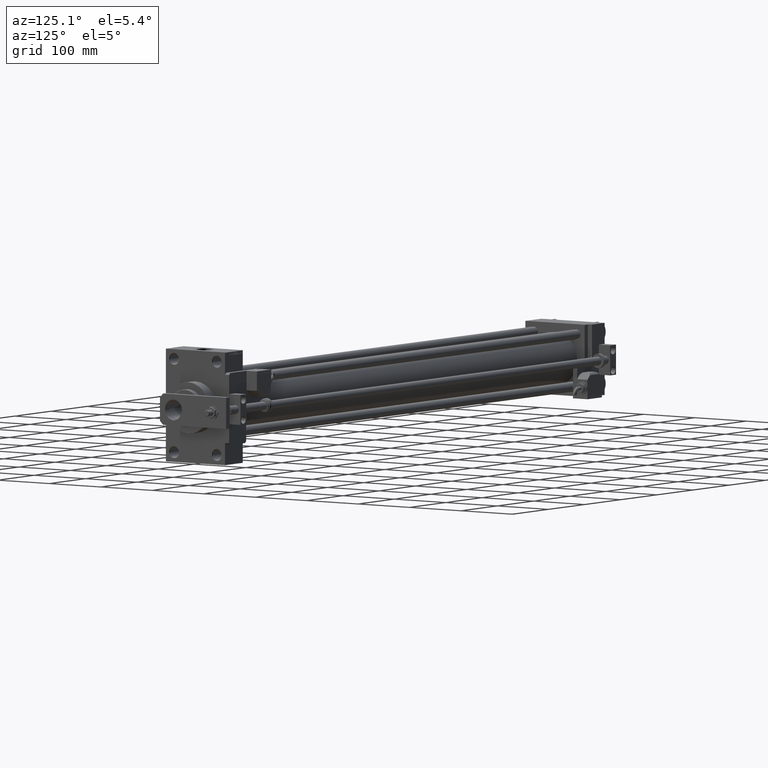
[diagram: clean part render]
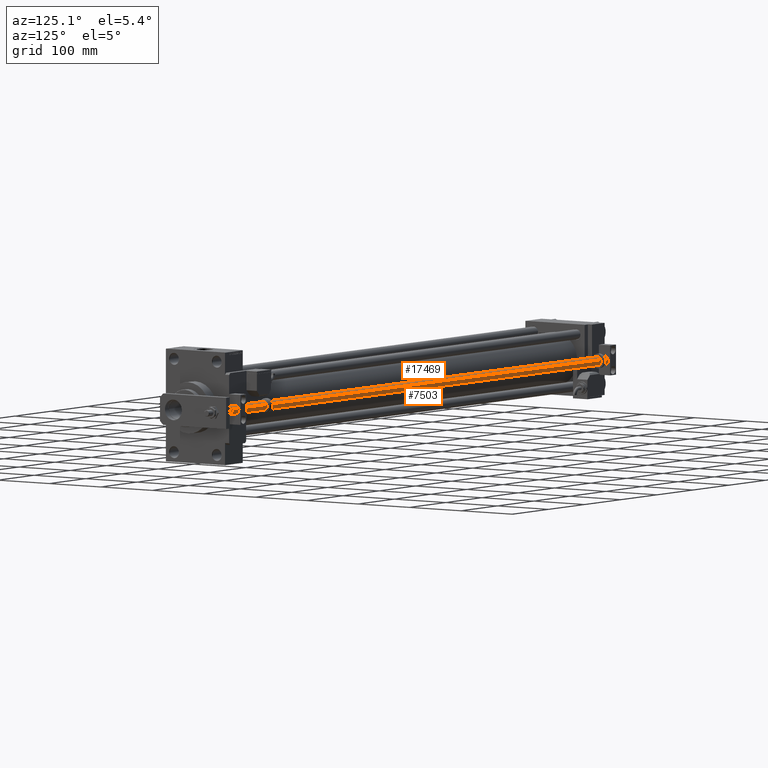
[diagram: same view with one multi-face feature highlighted, each face labeled with its STEP entity id]
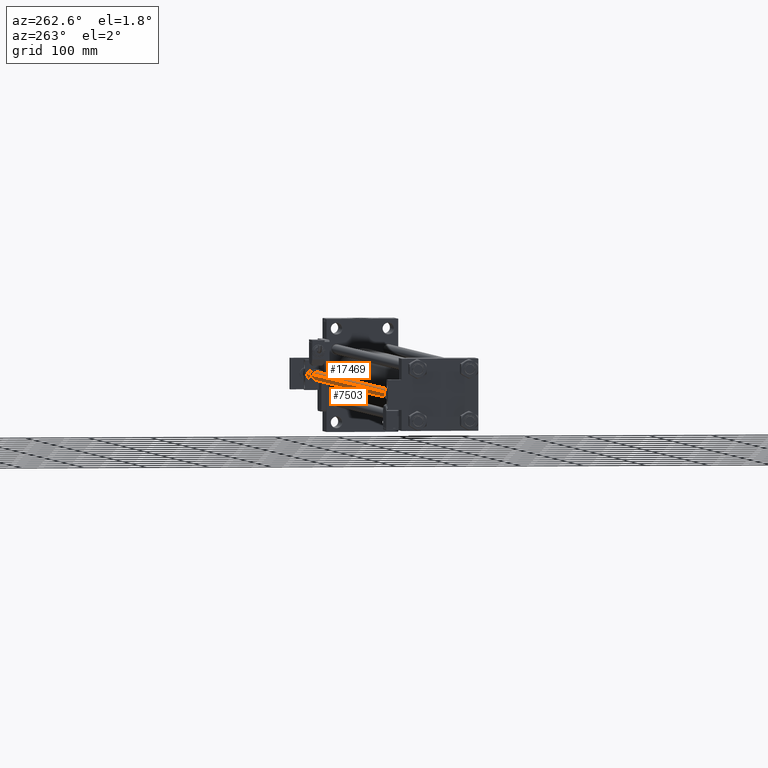
[diagram: same view with one multi-face feature highlighted, each face labeled with its STEP entity id]
A machine part, auxiliary view. The highlighted faces form ONE feature: a constant-radius fillet chain: 2 tangent blend faces with common blend radius 7 mm. The faces share edges in the B-rep.
A second angle (auxiliary view) of the same feature is appended — it is thin or edge-on in the first view.
Their STEP definitions:
[1] entity #7503 (Cylinder):
#692 = DIRECTION ( 'NONE',  ( -0.000000000000000000, -0.000000000000000000, -1.000000000000000000 ) ) ;
#845 = CARTESIAN_POINT ( 'NONE',  ( 7.000000000000000000, 8.572527594031473190E-16, 1058.000000000000000 ) ) ;
#3418 = AXIS2_PLACEMENT_3D ( 'NONE', #5179, #34915, #43068 ) ;
#4834 = DIRECTION ( 'NONE',  ( -0.000000000000000000, -0.000000000000000000, 1.000000000000000000 ) ) ;
#5179 = CARTESIAN_POINT ( 'NONE',  ( 0.000000000000000000, 0.000000000000000000, 1058.000000000000000 ) ) ;
#5529 = LINE ( 'NONE', #31053, #46439 ) ;
#6480 = DIRECTION ( 'NONE',  ( 0.000000000000000000, 0.000000000000000000, 1.000000000000000000 ) ) ;
#7177 = EDGE_CURVE ( 'NONE', #29651, #44306, #5529, .T. ) ;
#7503 = ADVANCED_FACE ( 'NONE', ( #25951 ), #30984, .T. ) ;
#8386 = EDGE_CURVE ( 'NONE', #23896, #48683, #35487, .T. ) ;
#10831 = AXIS2_PLACEMENT_3D ( 'NONE', #38249, #4834, #51439 ) ;
#11241 = CARTESIAN_POINT ( 'NONE',  ( 0.000000000000000000, 0.000000000000000000, 1058.000000000000000 ) ) ;
#11989 = ORIENTED_EDGE ( 'NONE', *, *, #7177, .F. ) ;
#12232 = EDGE_CURVE ( 'NONE', #23896, #29651, #27673, .T. ) ;
#13488 = CARTESIAN_POINT ( 'NONE',  ( 7.000000000000000000, 8.572527594031473190E-16, 0.2999999999999669598 ) ) ;
#19597 = AXIS2_PLACEMENT_3D ( 'NONE', #11241, #6480, #52806 ) ;
#21414 = CARTESIAN_POINT ( 'NONE',  ( -7.000000000000000000, 0.000000000000000000, 1058.000000000000000 ) ) ;
#23896 = VERTEX_POINT ( 'NONE', #845 ) ;
#25951 = FACE_OUTER_BOUND ( 'NONE', #36016, .T. ) ;
#26478 = EDGE_CURVE ( 'NONE', #48683, #44306, #28794, .T. ) ;
#27673 = CIRCLE ( 'NONE', #19597, 7.000000000000000000 ) ;
#28794 = CIRCLE ( 'NONE', #10831, 7.000000000000000000 ) ;
#29651 = VERTEX_POINT ( 'NONE', #21414 ) ;
#30176 = CARTESIAN_POINT ( 'NONE',  ( 7.000000000000000000, 8.572527594031473190E-16, 1058.000000000000000 ) ) ;
#30984 = CYLINDRICAL_SURFACE ( 'NONE', #3418, 7.000000000000000000 ) ;
#31053 = CARTESIAN_POINT ( 'NONE',  ( -7.000000000000000000, 0.000000000000000000, 1058.000000000000000 ) ) ;
#31383 = ORIENTED_EDGE ( 'NONE', *, *, #12232, .F. ) ;
#34915 = DIRECTION ( 'NONE',  ( -0.000000000000000000, -0.000000000000000000, -1.000000000000000000 ) ) ;
#35487 = LINE ( 'NONE', #30176, #51846 ) ;
#36016 = EDGE_LOOP ( 'NONE', ( #31383, #48695, #37261, #11989 ) ) ;
#37261 = ORIENTED_EDGE ( 'NONE', *, *, #26478, .T. ) ;
#38249 = CARTESIAN_POINT ( 'NONE',  ( 0.000000000000000000, 0.000000000000000000, 0.2999999999999669598 ) ) ;
#42573 = CARTESIAN_POINT ( 'NONE',  ( -7.000000000000000000, 0.000000000000000000, 0.2999999999999669598 ) ) ;
#43068 = DIRECTION ( 'NONE',  ( -1.000000000000000000, 0.000000000000000000, 0.000000000000000000 ) ) ;
#44306 = VERTEX_POINT ( 'NONE', #42573 ) ;
#46439 = VECTOR ( 'NONE', #48187, 1000.000000000000000 ) ;
#48187 = DIRECTION ( 'NONE',  ( -0.000000000000000000, -0.000000000000000000, -1.000000000000000000 ) ) ;
#48683 = VERTEX_POINT ( 'NONE', #13488 ) ;
#48695 = ORIENTED_EDGE ( 'NONE', *, *, #8386, .T. ) ;
#51439 = DIRECTION ( 'NONE',  ( 1.000000000000000000, 0.000000000000000000, 0.000000000000000000 ) ) ;
#51846 = VECTOR ( 'NONE', #692, 1000.000000000000000 ) ;
#52806 = DIRECTION ( 'NONE',  ( 1.000000000000000000, 0.000000000000000000, 0.000000000000000000 ) ) ;
[2] entity #17469 (Cylinder):
#692 = DIRECTION ( 'NONE',  ( -0.000000000000000000, -0.000000000000000000, -1.000000000000000000 ) ) ;
#845 = CARTESIAN_POINT ( 'NONE',  ( 7.000000000000000000, 8.572527594031473190E-16, 1058.000000000000000 ) ) ;
#1873 = AXIS2_PLACEMENT_3D ( 'NONE', #52772, #18246, #23289 ) ;
#5267 = ORIENTED_EDGE ( 'NONE', *, *, #7177, .T. ) ;
#5529 = LINE ( 'NONE', #31053, #46439 ) ;
#6178 = FACE_OUTER_BOUND ( 'NONE', #6243, .T. ) ;
#6243 = EDGE_LOOP ( 'NONE', ( #49064, #54006, #5267, #8683 ) ) ;
#7177 = EDGE_CURVE ( 'NONE', #29651, #44306, #5529, .T. ) ;
#8386 = EDGE_CURVE ( 'NONE', #23896, #48683, #35487, .T. ) ;
#8683 = ORIENTED_EDGE ( 'NONE', *, *, #24578, .T. ) ;
#11307 = CARTESIAN_POINT ( 'NONE',  ( 0.000000000000000000, 0.000000000000000000, 0.2999999999999669598 ) ) ;
#11595 = CARTESIAN_POINT ( 'NONE',  ( 0.000000000000000000, 0.000000000000000000, 1058.000000000000000 ) ) ;
#13488 = CARTESIAN_POINT ( 'NONE',  ( 7.000000000000000000, 8.572527594031473190E-16, 0.2999999999999669598 ) ) ;
#15254 = DIRECTION ( 'NONE',  ( -0.000000000000000000, -0.000000000000000000, 1.000000000000000000 ) ) ;
#17469 = ADVANCED_FACE ( 'NONE', ( #6178 ), #27504, .T. ) ;
#18246 = DIRECTION ( 'NONE',  ( -0.000000000000000000, -0.000000000000000000, -1.000000000000000000 ) ) ;
#21414 = CARTESIAN_POINT ( 'NONE',  ( -7.000000000000000000, 0.000000000000000000, 1058.000000000000000 ) ) ;
#23289 = DIRECTION ( 'NONE',  ( -1.000000000000000000, 0.000000000000000000, 0.000000000000000000 ) ) ;
#23896 = VERTEX_POINT ( 'NONE', #845 ) ;
#24578 = EDGE_CURVE ( 'NONE', #44306, #48683, #51237, .T. ) ;
#27504 = CYLINDRICAL_SURFACE ( 'NONE', #1873, 7.000000000000000000 ) ;
#27659 = EDGE_CURVE ( 'NONE', #29651, #23896, #47615, .T. ) ;
#28713 = DIRECTION ( 'NONE',  ( 1.000000000000000000, 0.000000000000000000, 0.000000000000000000 ) ) ;
#29537 = DIRECTION ( 'NONE',  ( 0.000000000000000000, 0.000000000000000000, 1.000000000000000000 ) ) ;
#29651 = VERTEX_POINT ( 'NONE', #21414 ) ;
#30176 = CARTESIAN_POINT ( 'NONE',  ( 7.000000000000000000, 8.572527594031473190E-16, 1058.000000000000000 ) ) ;
#31053 = CARTESIAN_POINT ( 'NONE',  ( -7.000000000000000000, 0.000000000000000000, 1058.000000000000000 ) ) ;
#35487 = LINE ( 'NONE', #30176, #51846 ) ;
#38690 = AXIS2_PLACEMENT_3D ( 'NONE', #11307, #15254, #53418 ) ;
#42295 = AXIS2_PLACEMENT_3D ( 'NONE', #11595, #29537, #28713 ) ;
#42573 = CARTESIAN_POINT ( 'NONE',  ( -7.000000000000000000, 0.000000000000000000, 0.2999999999999669598 ) ) ;
#44306 = VERTEX_POINT ( 'NONE', #42573 ) ;
#46439 = VECTOR ( 'NONE', #48187, 1000.000000000000000 ) ;
#47615 = CIRCLE ( 'NONE', #42295, 7.000000000000000000 ) ;
#48187 = DIRECTION ( 'NONE',  ( -0.000000000000000000, -0.000000000000000000, -1.000000000000000000 ) ) ;
#48683 = VERTEX_POINT ( 'NONE', #13488 ) ;
#49064 = ORIENTED_EDGE ( 'NONE', *, *, #8386, .F. ) ;
#51237 = CIRCLE ( 'NONE', #38690, 7.000000000000000000 ) ;
#51846 = VECTOR ( 'NONE', #692, 1000.000000000000000 ) ;
#52772 = CARTESIAN_POINT ( 'NONE',  ( 0.000000000000000000, 0.000000000000000000, 1058.000000000000000 ) ) ;
#53418 = DIRECTION ( 'NONE',  ( 1.000000000000000000, 0.000000000000000000, 0.000000000000000000 ) ) ;
#54006 = ORIENTED_EDGE ( 'NONE', *, *, #27659, .F. ) ;